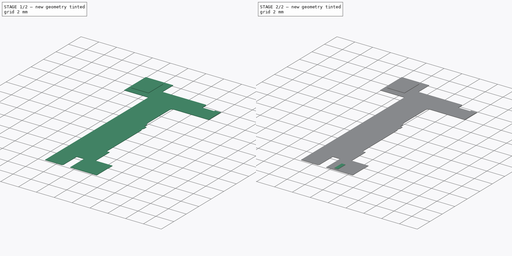
[diagram: build sequence overview — one tinted view per stage of 2, left to right]
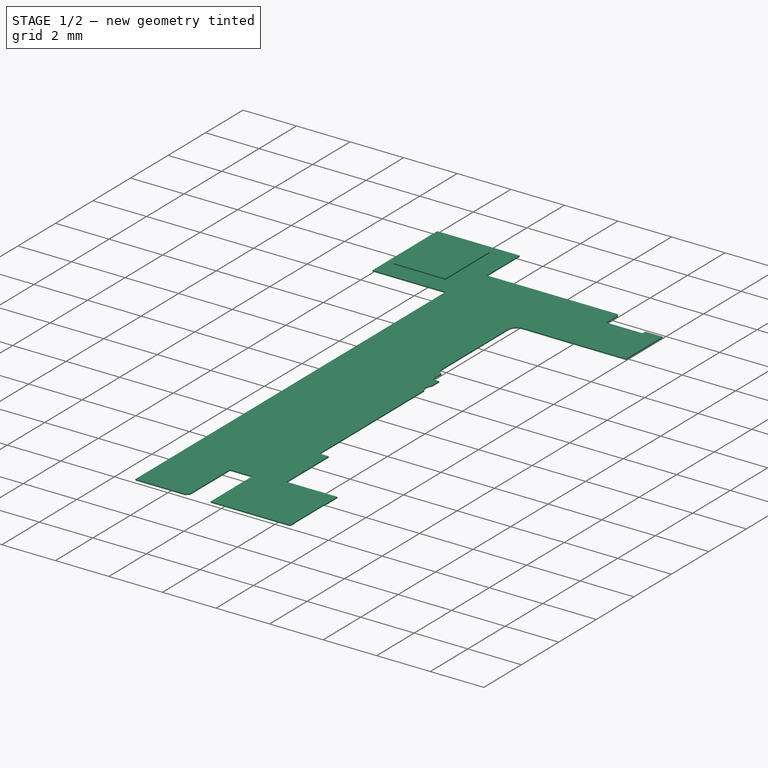
[diagram: stage 1 of 2 — iso view after this stage's code; geometry added in this stage tinted green]
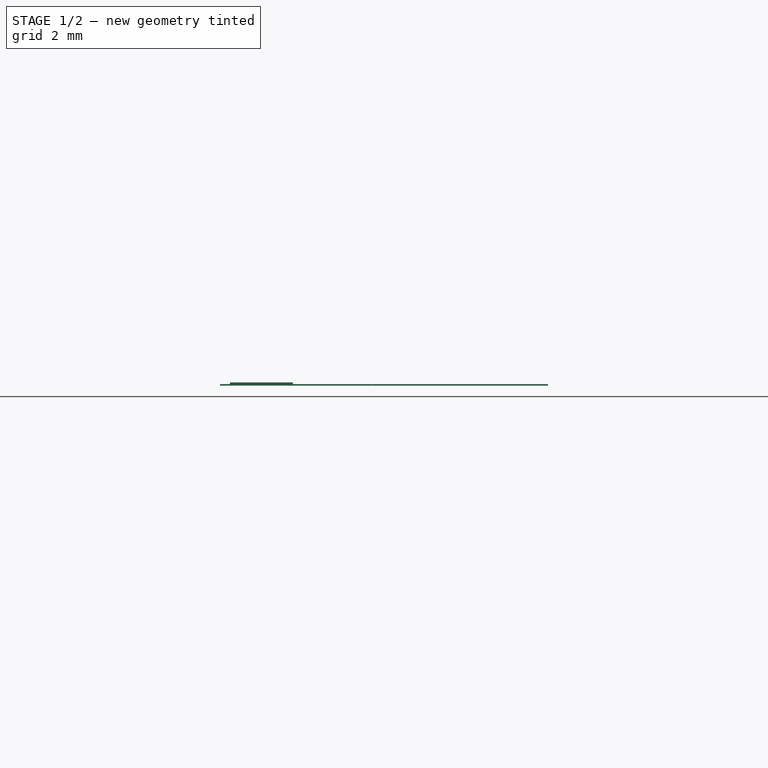
[diagram: stage 1 of 2 — front view after this stage's code; geometry added in this stage tinted green]
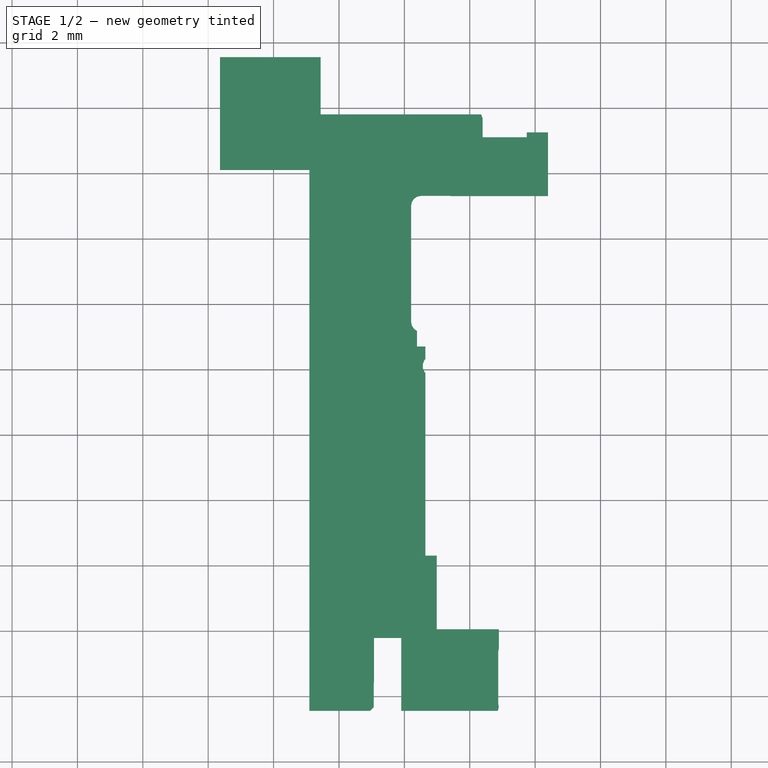
[diagram: stage 1 of 2 — top view after this stage's code; geometry added in this stage tinted green]
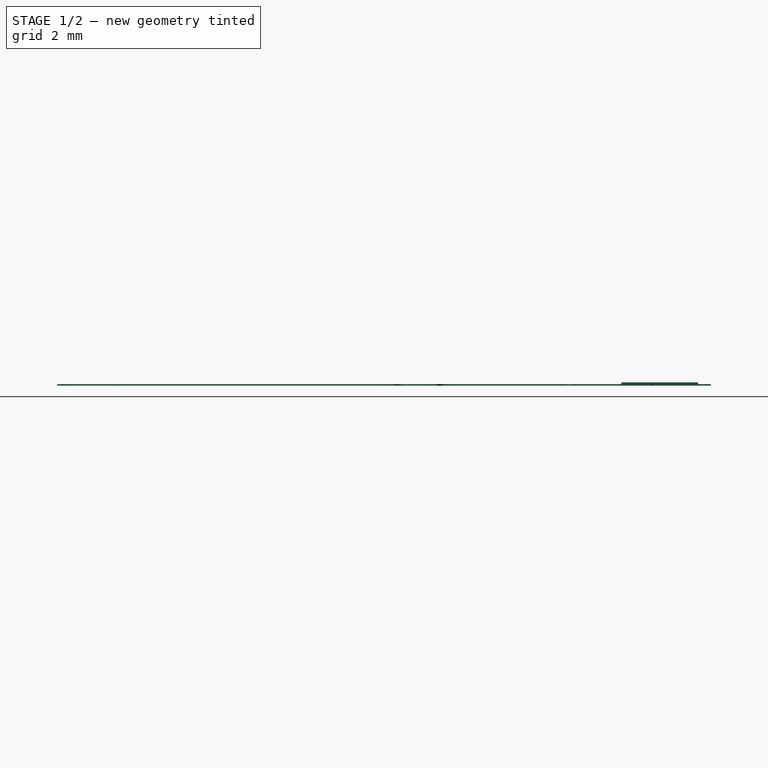
[diagram: stage 1 of 2 — right view after this stage's code; geometry added in this stage tinted green]
FCSTD DOCUMENT  (FreeCAD 0.21R33668 +26 (Git))
Label: Test_3
License: All rights reserved
LicenseURL: http://en.wikipedia.org/wiki/All_rights_reserved
objects: Sketcher::SketchObject×3, PartDesign::Pad×3, PartDesign::Body×1
note: 10 computed .brp shape members not serialized (recipe doc carries the construction recipe); baked Part::Feature solids carry a one-line shape summary decoded from their .brp

FEATURE [Sketcher::SketchObject] Sketch
  FullyConstrained = false
  sketch-geometry (50):
    g0: LineSegment StartX=36.3461 StartY=51.8091 StartZ=0 EndX=36.393 EndY=51.7016 EndZ=0
    g1: LineSegment StartX=36.393 StartY=51.7016 StartZ=0 EndX=36.393 EndY=51.11 EndZ=0
    g2: LineSegment StartX=36.393 StartY=51.11 StartZ=0 EndX=37.743 EndY=51.11 EndZ=0
    g3: LineSegment StartX=37.743 StartY=51.11 StartZ=0 EndX=37.743 EndY=51.26 EndZ=0
    g4: LineSegment StartX=37.743 StartY=51.26 StartZ=0 EndX=38.393 EndY=51.26 EndZ=0
    g5: LineSegment StartX=38.393 StartY=51.26 StartZ=0 EndX=38.393 EndY=49.31 EndZ=0
    g6: LineSegment StartX=38.393 StartY=49.31 StartZ=0 EndX=35.4582 EndY=49.31 EndZ=0
    g7: LineSegment StartX=35.4582 StartY=49.31 StartZ=0 EndX=35.4573 EndY=49.3102 EndZ=0
    g8: LineSegment StartX=35.4573 StartY=49.3102 StartZ=0 EndX=35.4276 EndY=49.3101 EndZ=0
    g9: LineSegment StartX=35.4276 StartY=49.3101 StartZ=0 EndX=35.3985 EndY=49.3159 EndZ=0
    g10: LineSegment StartX=35.3985 StartY=49.3159 StartZ=0 EndX=34.513 EndY=49.3159 EndZ=0
    g11: LineSegment StartX=34.513 StartY=49.3159 StartZ=0 EndX=34.3959 EndY=49.2926 EndZ=0
    g12: LineSegment StartX=34.3959 StartY=49.2926 StartZ=0 EndX=34.2967 EndY=49.2263 EndZ=0
    g13: LineSegment StartX=34.2967 StartY=49.2263 StartZ=0 EndX=34.2304 EndY=49.1271 EndZ=0
    g14: LineSegment StartX=34.2304 StartY=49.1271 StartZ=0 EndX=34.2071 EndY=49.01 EndZ=0
    g15: LineSegment StartX=34.2071 StartY=49.01 StartZ=0 EndX=34.2071 EndY=45.462 EndZ=0
    g16: LineSegment StartX=34.2071 StartY=45.462 StartZ=0 EndX=34.2304 EndY=45.3449 EndZ=0
    g17: LineSegment StartX=34.2304 StartY=45.3449 StartZ=0 EndX=34.2967 EndY=45.2457 EndZ=0
    g18: LineSegment StartX=34.2967 StartY=45.2457 StartZ=0 EndX=34.386 EndY=45.1861 EndZ=0
    g19: LineSegment StartX=34.386 StartY=45.1861 StartZ=0 EndX=34.386 EndY=44.708 EndZ=0
    g20: LineSegment StartX=34.386 StartY=44.708 StartZ=0 EndX=34.643 EndY=44.708 EndZ=0
    g21: LineSegment StartX=34.643 StartY=44.708 StartZ=0 EndX=34.643 EndY=44.3224 EndZ=0
    g22: LineSegment StartX=34.643 StartY=44.3224 StartZ=0 EndX=34.6158 EndY=44.2952 EndZ=0
    g23: LineSegment StartX=34.6158 StartY=44.2952 StartZ=0 EndX=34.566 EndY=44.175 EndZ=0
    g24: LineSegment StartX=34.566 StartY=44.175 StartZ=0 EndX=34.566 EndY=44.045 EndZ=0
    g25: LineSegment StartX=34.566 StartY=44.045 StartZ=0 EndX=34.6158 EndY=43.9248 EndZ=0
    g26: LineSegment StartX=34.6158 StartY=43.9248 StartZ=0 EndX=34.643 EndY=43.8976 EndZ=0
    g27: LineSegment StartX=34.643 StartY=43.8976 StartZ=0 EndX=34.643 EndY=38.31 EndZ=0
    g28: LineSegment StartX=34.643 StartY=38.31 StartZ=0 EndX=34.9922 EndY=38.31 EndZ=0
    g29: LineSegment StartX=34.9922 StartY=38.31 StartZ=0 EndX=34.9922 EndY=36.0569 EndZ=0
    g30: LineSegment StartX=34.9922 StartY=36.0569 StartZ=0 EndX=36.893 EndY=36.0569 EndZ=0
    g31: LineSegment StartX=36.893 StartY=36.0569 StartZ=0 EndX=36.893 EndY=35.4789 EndZ=0
    g32: LineSegment StartX=36.893 StartY=35.4789 StartZ=0 EndX=36.8717 EndY=35.372 EndZ=0
    g33: LineSegment StartX=36.8717 StartY=35.372 StartZ=0 EndX=36.8717 EndY=33.7801 EndZ=0
    g34: LineSegment StartX=36.8717 StartY=33.7801 StartZ=0 EndX=36.8903 EndY=33.687 EndZ=0
    g35: LineSegment StartX=36.8903 StartY=33.687 StartZ=0 EndX=36.8608 EndY=33.56 EndZ=0
    g36: LineSegment StartX=36.8608 StartY=33.56 StartZ=0 EndX=33.9061 EndY=33.56 EndZ=0
    g37: LineSegment StartX=33.9061 StartY=33.56 StartZ=0 EndX=33.9061 EndY=35.7901 EndZ=0
    g38: LineSegment StartX=33.9061 StartY=35.7901 StartZ=0 EndX=33.0699 EndY=35.7901 EndZ=0
    g39: LineSegment StartX=33.0699 StartY=35.7901 StartZ=0 EndX=33.0699 EndY=34.437 EndZ=0
    g40: LineSegment StartX=33.0699 StartY=34.437 StartZ=0 EndX=33.065 EndY=34.412 EndZ=0
    g41: LineSegment StartX=33.065 StartY=34.412 StartZ=0 EndX=33.065 EndY=33.6732 EndZ=0
    g42: LineSegment StartX=33.065 StartY=33.6732 StartZ=0 EndX=32.9517 EndY=33.56 EndZ=0
    g43: LineSegment StartX=32.9517 StartY=33.56 StartZ=0 EndX=31.093 EndY=33.56 EndZ=0
    g44: LineSegment StartX=31.093 StartY=33.56 StartZ=0 EndX=31.093 EndY=50.11 EndZ=0
    g45: LineSegment StartX=31.093 StartY=50.11 StartZ=0 EndX=28.3622 EndY=50.11 EndZ=0
    g46: LineSegment StartX=28.3622 StartY=50.11 StartZ=0 EndX=28.3622 EndY=53.56 EndZ=0
    g47: LineSegment StartX=28.3622 StartY=53.56 StartZ=0 EndX=31.4399 EndY=53.56 EndZ=0
    g48: LineSegment StartX=31.4399 StartY=53.56 StartZ=0 EndX=31.4399 EndY=51.8091 EndZ=0
    g49: LineSegment StartX=31.4399 StartY=51.8091 StartZ=0 EndX=36.3461 EndY=51.8091 EndZ=0
  constraints (79):
    c: Coincident(g0,g1)
    c: Vertical(g1)
    c: Coincident(g1,g2)
    c: Horizontal(g2)
    c: Coincident(g2,g3)
    c: Vertical(g3)
    c: Coincident(g3,g4)
    c: Horizontal(g4)
    c: Coincident(g4,g5)
    c: Vertical(g5)
    c: Coincident(g5,g6)
    c: Horizontal(g6)
    c: Coincident(g6,g7)
    c: Coincident(g7,g8)
    c: Coincident(g8,g9)
    c: Coincident(g9,g10)
    c: Horizontal(g10)
    c: Coincident(g10,g11)
    c: Coincident(g11,g12)
    c: Coincident(g12,g13)
    c: Coincident(g13,g14)
    c: Coincident(g14,g15)
    c: Vertical(g15)
    c: Coincident(g15,g16)
    c: Coincident(g16,g17)
    c: Coincident(g17,g18)
    c: Coincident(g18,g19)
    c: Vertical(g19)
    c: Coincident(g19,g20)
    c: Horizontal(g20)
    c: Coincident(g20,g21)
    c: Vertical(g21)
    c: Coincident(g21,g22)
    c: Coincident(g22,g23)
    c: Coincident(g23,g24)
    c: Vertical(g24)
    c: Coincident(g24,g25)
    c: Coincident(g25,g26)
    c: Coincident(g26,g27)
    c: Vertical(g27)
    c: Coincident(g27,g28)
    c: Horizontal(g28)
    c: Coincident(g28,g29)
    c: Vertical(g29)
    c: Coincident(g29,g30)
    c: Horizontal(g30)
    c: Coincident(g30,g31)
    c: Vertical(g31)
    c: Coincident(g31,g32)
    c: Coincident(g32,g33)
    c: Vertical(g33)
    c: Coincident(g33,g34)
    c: Coincident(g34,g35)
    c: Coincident(g35,g36)
    c: Horizontal(g36)
    c: Coincident(g36,g37)
    c: Vertical(g37)
    c: Coincident(g37,g38)
    c: Horizontal(g38)
    c: Coincident(g38,g39)
    c: Vertical(g39)
    c: Coincident(g39,g40)
    c: Coincident(g40,g41)
    c: Vertical(g41)
    c: Coincident(g41,g42)
    c: Coincident(g42,g43)
    c: Horizontal(g43)
    c: Coincident(g43,g44)
    c: Vertical(g44)
    c: Coincident(g44,g45)
    c: Horizontal(g45)
    c: Coincident(g45,g46)
    c: Vertical(g46)
    c: Coincident(g46,g47)
    c: Horizontal(g47)
    c: Coincident(g47,g48)
    c: Vertical(g48)
    c: Coincident(g48,g49)
    c: Coincident(g49,g0)
FEATURE [PartDesign::Pad] Pad
  Direction = (0,0,1)
  Length = 0.046
  Length2 = 10
  Profile = -> Sketch
  ReferenceAxis = -> Sketch [N_Axis]
  Type = 0
FEATURE [Sketcher::SketchObject] Sketch002
  FullyConstrained = false
  MapMode = 5
  Placement = pos=(0,0,0.046) rot=(0,0,1;0rad)
  Support = -> [Pad]
  sketch-geometry (4):
    g0: LineSegment StartX=28.6666 StartY=53.1681 StartZ=0 EndX=30.5914 EndY=53.1681 EndZ=0
    g1: LineSegment StartX=30.5914 StartY=53.1681 StartZ=0 EndX=30.5914 EndY=50.817 EndZ=0
    g2: LineSegment StartX=30.5914 StartY=50.817 StartZ=0 EndX=28.6666 EndY=50.817 EndZ=0
    g3: LineSegment StartX=28.6666 StartY=50.817 StartZ=0 EndX=28.6666 EndY=53.1681 EndZ=0
  constraints (8):
    c: Coincident(g0,g1)
    c: Coincident(g1,g2)
    c: Coincident(g2,g3)
    c: Coincident(g3,g0)
    c: Horizontal(g0)
    c: Horizontal(g2)
    c: Vertical(g1)
    c: Vertical(g3)
FEATURE [PartDesign::Pad] Pad001
  BaseFeature = -> Pad
  Direction = (0,0,1)
  Length = 0.05
  Length2 = 10
  Profile = -> Sketch002
  ReferenceAxis = -> Sketch002 [N_Axis]
  Type = 0
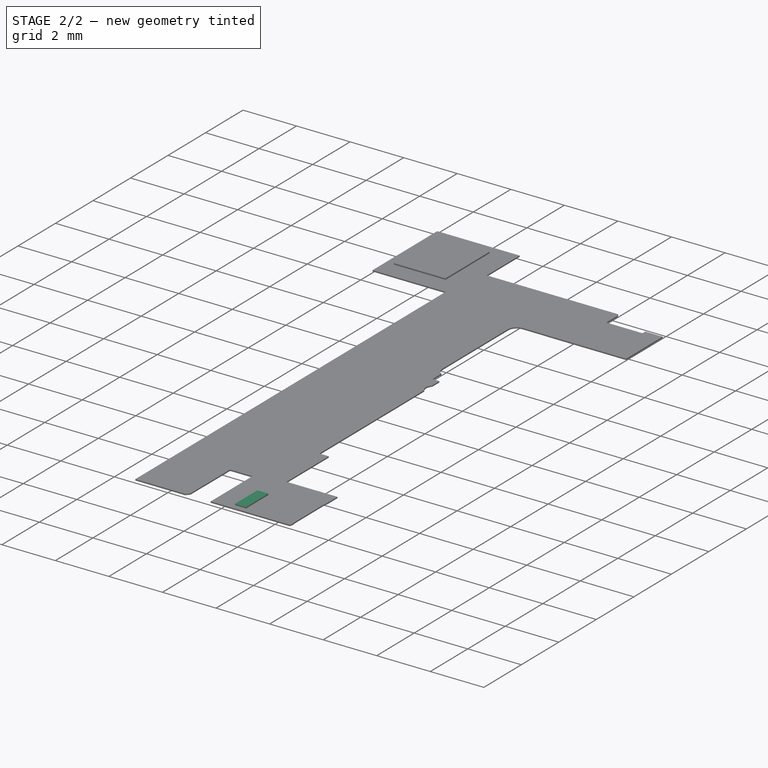
[diagram: stage 2 of 2 — iso view after this stage's code; geometry added in this stage tinted green]
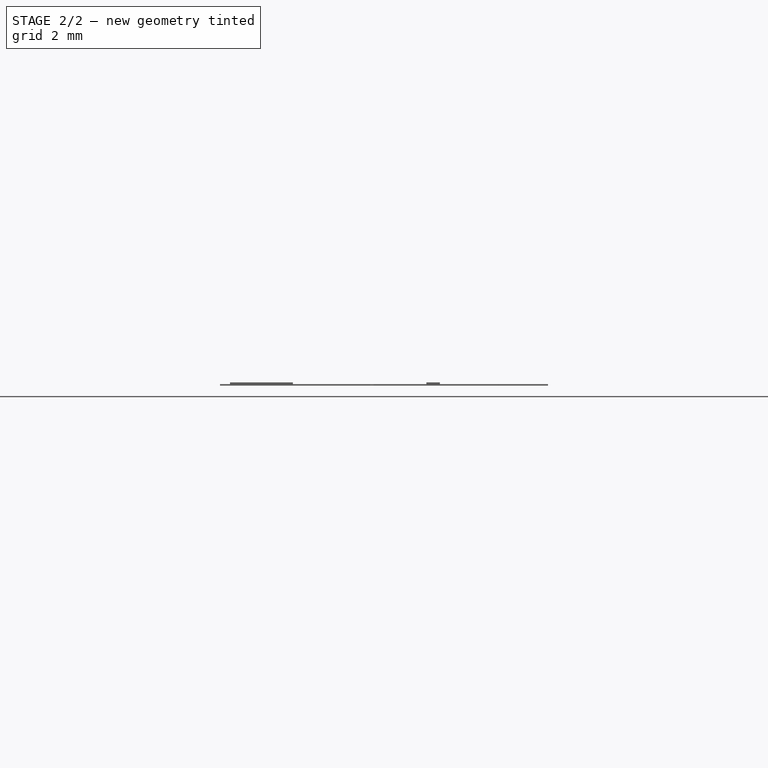
[diagram: stage 2 of 2 — front view after this stage's code; geometry added in this stage tinted green]
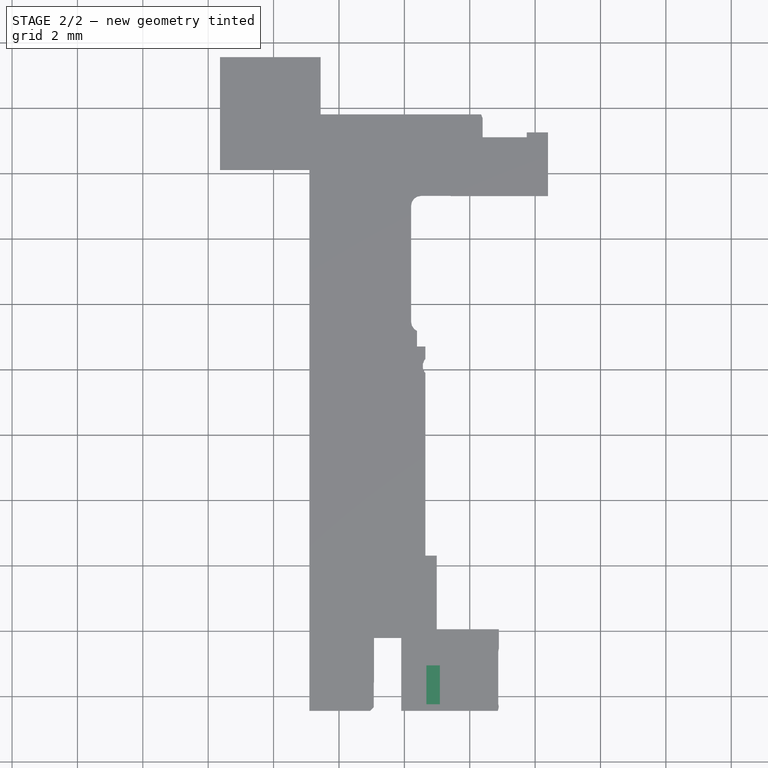
[diagram: stage 2 of 2 — top view after this stage's code; geometry added in this stage tinted green]
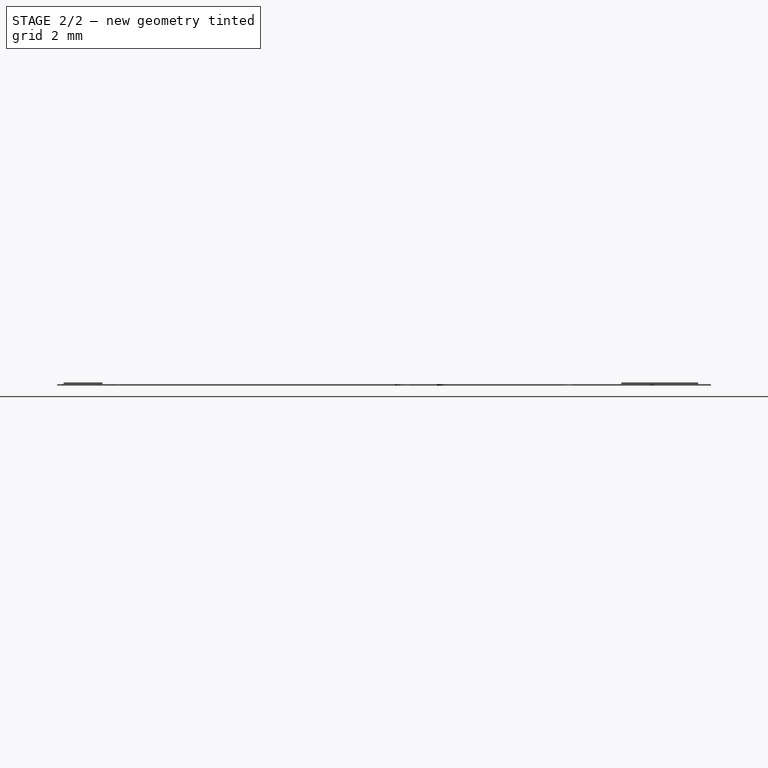
[diagram: stage 2 of 2 — right view after this stage's code; geometry added in this stage tinted green]
FEATURE [Sketcher::SketchObject] Sketch003
  FullyConstrained = false
  MapMode = 5
  Placement = pos=(0,0,0.046) rot=(0,0,1;0rad)
  Support = -> [Pad001]
  sketch-geometry (4):
    g0: LineSegment StartX=34.6738 StartY=34.9507 StartZ=0 EndX=35.0883 EndY=34.9507 EndZ=0
    g1: LineSegment StartX=35.0883 StartY=34.9507 StartZ=0 EndX=35.0883 EndY=33.7606 EndZ=0
    g2: LineSegment StartX=35.0883 StartY=33.7606 StartZ=0 EndX=34.6738 EndY=33.7606 EndZ=0
    g3: LineSegment StartX=34.6738 StartY=33.7606 StartZ=0 EndX=34.6738 EndY=34.9507 EndZ=0
  constraints (8):
    c: Coincident(g0,g1)
    c: Coincident(g1,g2)
    c: Coincident(g2,g3)
    c: Coincident(g3,g0)
    c: Horizontal(g0)
    c: Horizontal(g2)
    c: Vertical(g1)
    c: Vertical(g3)
FEATURE [PartDesign::Pad] Pad002
  BaseFeature = -> Pad001
  Direction = (0,0,1)
  Length = 0.05
  Length2 = 10
  Profile = -> Sketch003
  ReferenceAxis = -> Sketch003 [N_Axis]
  Type = 0
FEATURE [PartDesign::Body] Body
  Group = -> [Sketch,Pad,Sketch002,Pad001,Sketch003,Pad002]
  Origin = -> Origin
  Tip = -> Pad002
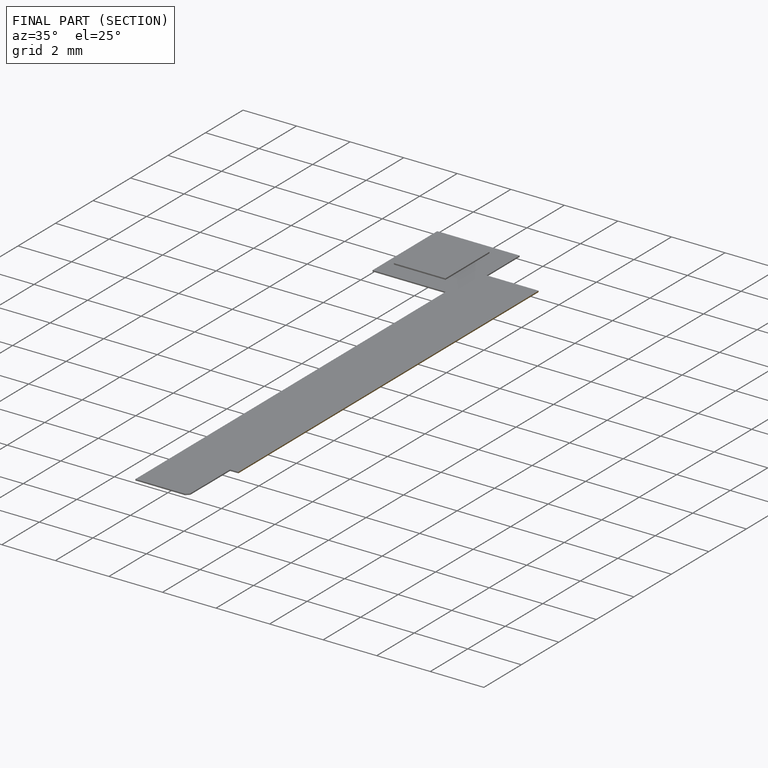
[diagram: finished part — half-section view (interior)]
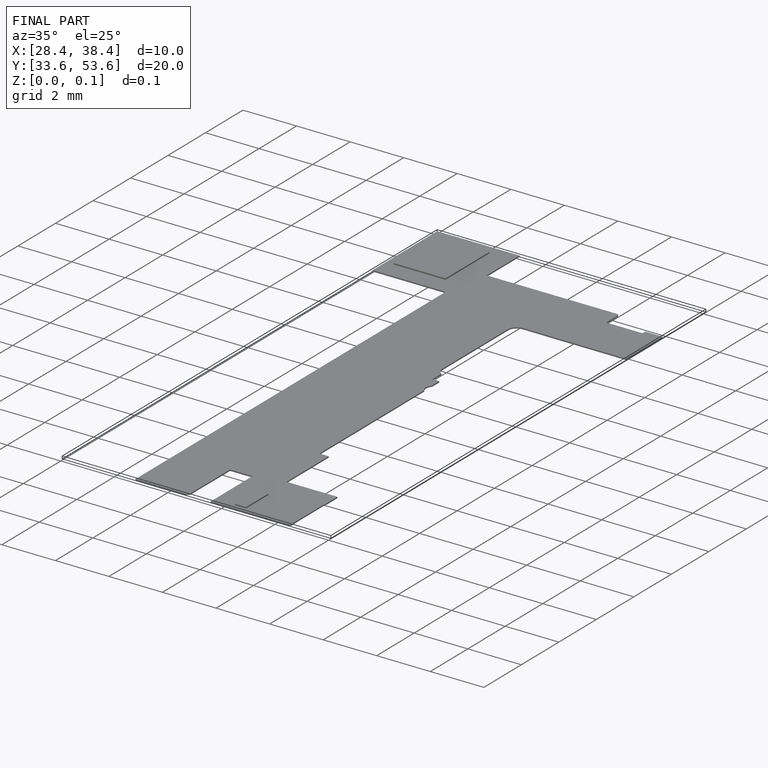
[diagram: finished part — iso view with bounding-box wireframe]
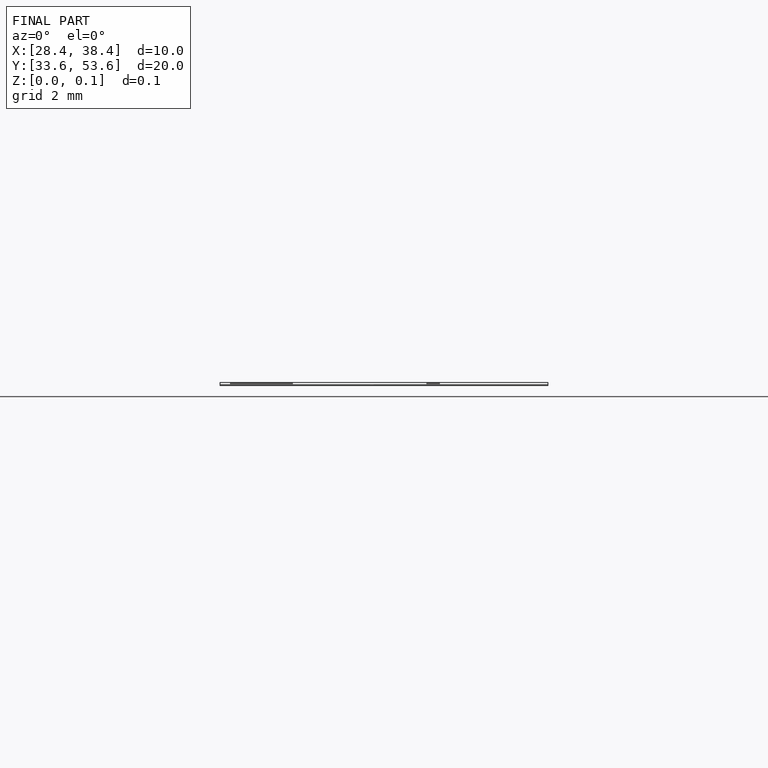
[diagram: finished part — front view with bounding-box wireframe]
